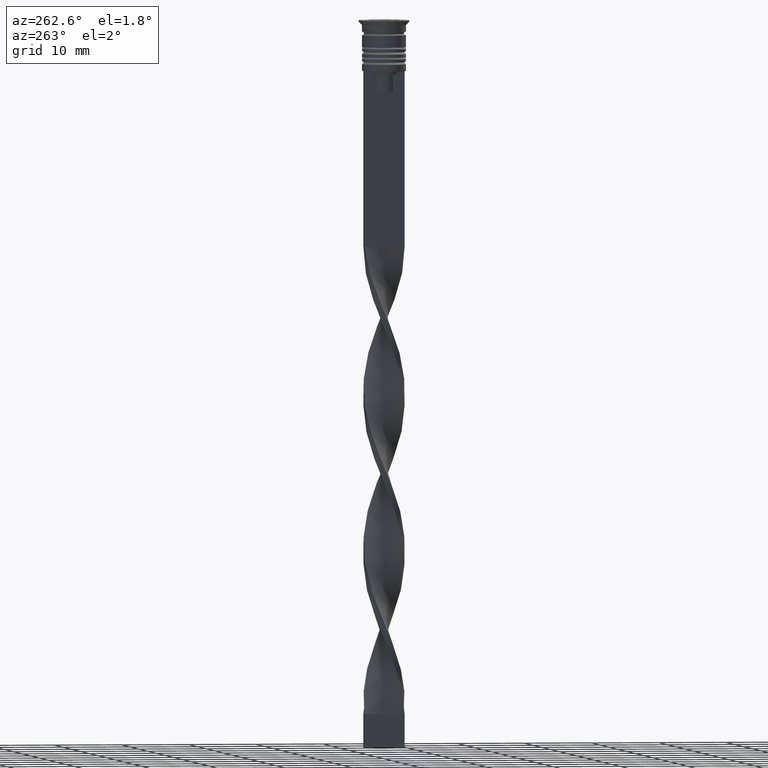
[diagram: clean part render]
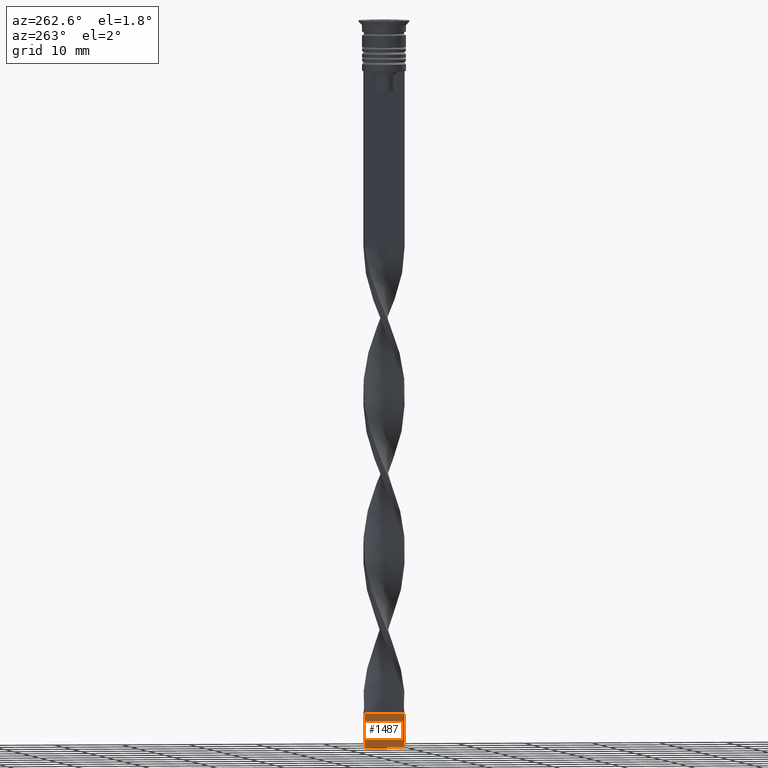
[diagram: same view with one face highlighted and labeled with its STEP entity id]
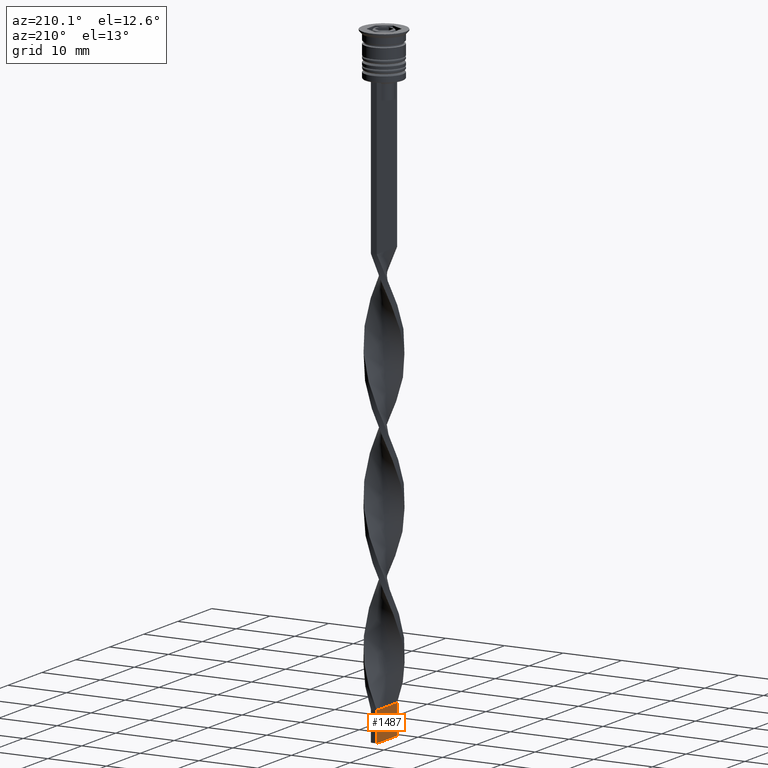
[diagram: same view with one face highlighted and labeled with its STEP entity id]
A machine part, auxiliary view. The second image highlights one B-rep face of the part: STEP entity #1487.
A second angle (auxiliary view) of the same face is appended — the face is thin or edge-on in the first view.
In plain terms, the highlighted planar face has unit normal (1, -0, 0).
Its self-contained STEP definition (entity closure, byte-faithful):
#12 = ORIENTED_EDGE ( 'NONE', *, *, #2622, .T. ) ;
#21 = VERTEX_POINT ( 'NONE', #2729 ) ;
#251 = CARTESIAN_POINT ( 'NONE',  ( -0.5000000000000002220, -3.000000000000000000, -107.5000000000000142 ) ) ;
#307 = CARTESIAN_POINT ( 'NONE',  ( -0.5000000000000002220, -3.000000000000000000, -102.5000000000000142 ) ) ;
#325 = VERTEX_POINT ( 'NONE', #3316 ) ;
#398 = DIRECTION ( 'NONE',  ( -0.000000000000000000, -0.000000000000000000, 1.000000000000000000 ) ) ;
#734 = EDGE_LOOP ( 'NONE', ( #12, #764, #2004, #1752 ) ) ;
#757 = CARTESIAN_POINT ( 'NONE',  ( -0.5000000000000002220, -3.000000000000000000, -107.5000000000000142 ) ) ;
#764 = ORIENTED_EDGE ( 'NONE', *, *, #2254, .F. ) ;
#960 = DIRECTION ( 'NONE',  ( 1.084202172485504434E-16, 1.000000000000000000, 0.000000000000000000 ) ) ;
#1009 = DIRECTION ( 'NONE',  ( 1.000000000000000000, -1.084202172485504434E-16, 0.000000000000000000 ) ) ;
#1090 = DIRECTION ( 'NONE',  ( -0.000000000000000000, -0.000000000000000000, 1.000000000000000000 ) ) ;
#1215 = AXIS2_PLACEMENT_3D ( 'NONE', #251, #1009, #960 ) ;
#1309 = B_SPLINE_CURVE_WITH_KNOTS ( 'NONE', 3,
 ( #307, #2856, #1787, #2319 ),
 .UNSPECIFIED., .F., .F.,
 ( 4, 4 ),
 ( 0.000000000000000000, 1.000000000000000000 ),
 .UNSPECIFIED. ) ;
#1345 = LINE ( 'NONE', #2386, #3010 ) ;
#1487 = ADVANCED_FACE ( 'NONE', ( #3342 ), #2242, .F. ) ;
#1518 = VERTEX_POINT ( 'NONE', #757 ) ;
#1622 = DIRECTION ( 'NONE',  ( 1.084202172485504434E-16, 1.000000000000000000, 0.000000000000000000 ) ) ;
#1752 = ORIENTED_EDGE ( 'NONE', *, *, #1882, .T. ) ;
#1787 = CARTESIAN_POINT ( 'NONE',  ( -0.4999999999999997780, 1.000000000000000000, -102.5000000000000142 ) ) ;
#1824 = EDGE_CURVE ( 'NONE', #1518, #2564, #3199, .T. ) ;
#1882 = EDGE_CURVE ( 'NONE', #1518, #325, #3040, .T. ) ;
#2004 = ORIENTED_EDGE ( 'NONE', *, *, #1824, .F. ) ;
#2242 = PLANE ( 'NONE',  #1215 ) ;
#2254 = EDGE_CURVE ( 'NONE', #2564, #21, #1345, .T. ) ;
#2319 = CARTESIAN_POINT ( 'NONE',  ( -0.4999999999999995559, 3.000000000000000000, -102.5000000000000142 ) ) ;
#2386 = CARTESIAN_POINT ( 'NONE',  ( -0.4999999999999995559, 3.000000000000000000, -107.5000000000000142 ) ) ;
#2471 = VECTOR ( 'NONE', #398, 1000.000000000000000 ) ;
#2485 = CARTESIAN_POINT ( 'NONE',  ( -0.5000000000000002220, -3.000000000000000000, -107.5000000000000142 ) ) ;
#2511 = CARTESIAN_POINT ( 'NONE',  ( -0.4999999999999995559, 3.000000000000000000, -107.5000000000000142 ) ) ;
#2564 = VERTEX_POINT ( 'NONE', #2511 ) ;
#2622 = EDGE_CURVE ( 'NONE', #325, #21, #1309, .T. ) ;
#2729 = CARTESIAN_POINT ( 'NONE',  ( -0.4999999999999995559, 3.000000000000000000, -102.5000000000000142 ) ) ;
#2856 = CARTESIAN_POINT ( 'NONE',  ( -0.5000000000000000000, -1.000000000000000000, -102.5000000000000142 ) ) ;
#2923 = CARTESIAN_POINT ( 'NONE',  ( -0.5000000000000002220, -3.000000000000000000, -107.5000000000000142 ) ) ;
#3010 = VECTOR ( 'NONE', #1090, 1000.000000000000000 ) ;
#3040 = LINE ( 'NONE', #2485, #2471 ) ;
#3199 = LINE ( 'NONE', #2923, #3227 ) ;
#3227 = VECTOR ( 'NONE', #1622, 1000.000000000000000 ) ;
#3316 = CARTESIAN_POINT ( 'NONE',  ( -0.5000000000000002220, -3.000000000000000000, -102.5000000000000142 ) ) ;
#3342 = FACE_OUTER_BOUND ( 'NONE', #734, .T. ) ;